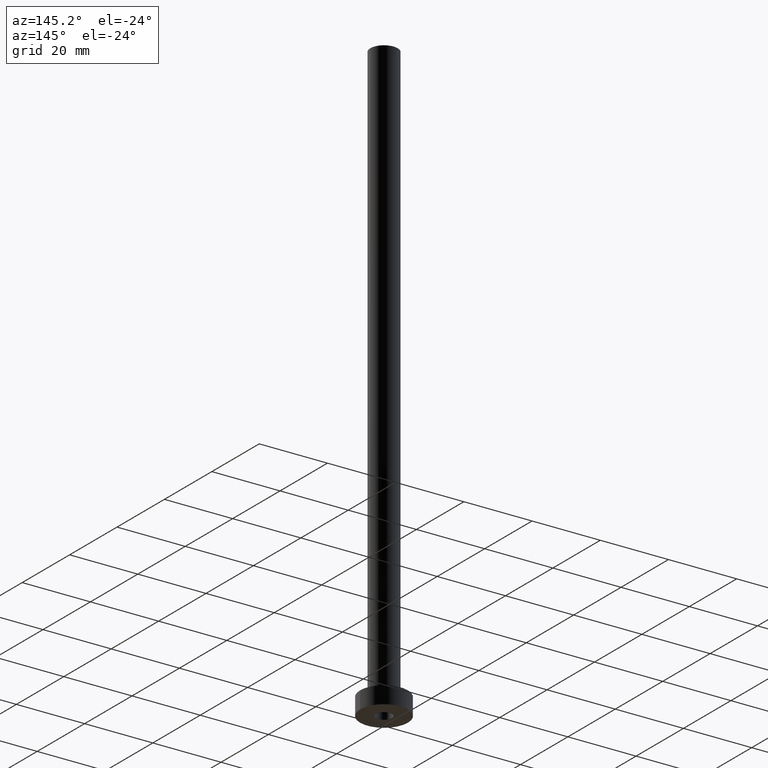
[diagram: clean part render]
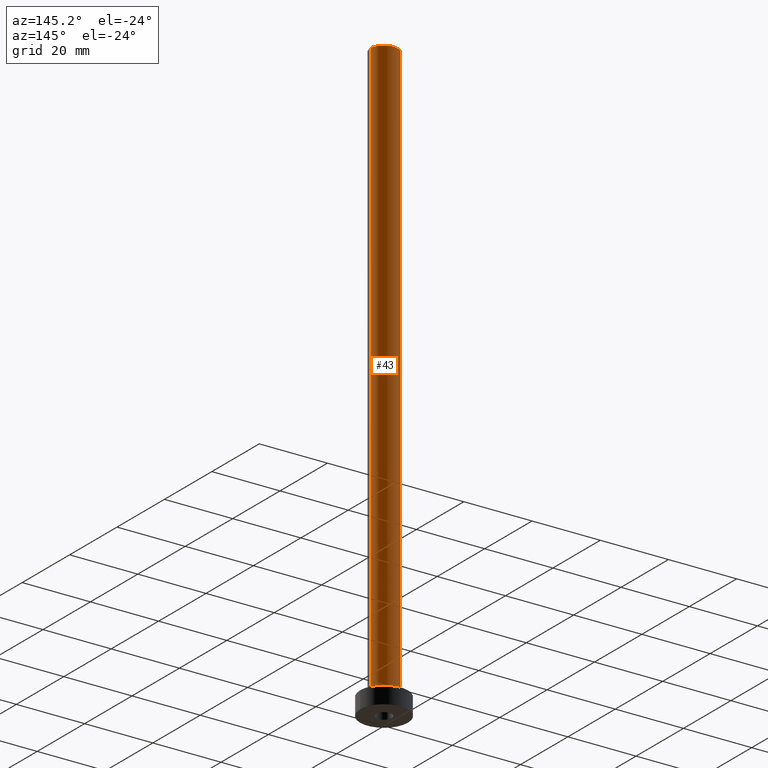
[diagram: same view with one face highlighted and labeled with its STEP entity id]
A machine part, auxiliary view. The second image highlights one B-rep face of the part: STEP entity #43.
In plain terms, the highlighted cylindrical surface (edge-blend (fillet) strip) has radius 4 mm, axis along (-0, -0, -1).
Its self-contained STEP definition (entity closure, byte-faithful):
#4 = CARTESIAN_POINT ( 'NONE',  ( 0.000000000000000000, 0.000000000000000000, 175.0000000000000284 ) ) ;
#16 = ORIENTED_EDGE ( 'NONE', *, *, #284, .F. ) ;
#40 = CYLINDRICAL_SURFACE ( 'NONE', #246, 4.000000000000000000 ) ;
#43 = ADVANCED_FACE ( 'NONE', ( #309 ), #40, .T. ) ;
#45 = ORIENTED_EDGE ( 'NONE', *, *, #294, .T. ) ;
#52 = CARTESIAN_POINT ( 'NONE',  ( 4.000000000000000000, 4.898587196589412829E-16, 175.0000000000000284 ) ) ;
#64 = CARTESIAN_POINT ( 'NONE',  ( -4.000000000000000000, 0.000000000000000000, 175.0000000000000284 ) ) ;
#69 = CARTESIAN_POINT ( 'NONE',  ( 0.000000000000000000, 0.000000000000000000, 5.500000000000005329 ) ) ;
#89 = ORIENTED_EDGE ( 'NONE', *, *, #127, .T. ) ;
#90 = LINE ( 'NONE', #375, #104 ) ;
#97 = EDGE_LOOP ( 'NONE', ( #16, #89, #45, #153 ) ) ;
#98 = DIRECTION ( 'NONE',  ( -0.000000000000000000, -0.000000000000000000, -1.000000000000000000 ) ) ;
#103 = DIRECTION ( 'NONE',  ( 0.000000000000000000, 0.000000000000000000, 1.000000000000000000 ) ) ;
#104 = VECTOR ( 'NONE', #230, 1000.000000000000000 ) ;
#127 = EDGE_CURVE ( 'NONE', #178, #165, #90, .T. ) ;
#144 = DIRECTION ( 'NONE',  ( -0.000000000000000000, -0.000000000000000000, -1.000000000000000000 ) ) ;
#153 = ORIENTED_EDGE ( 'NONE', *, *, #306, .F. ) ;
#165 = VERTEX_POINT ( 'NONE', #384 ) ;
#173 = CIRCLE ( 'NONE', #443, 4.000000000000000000 ) ;
#178 = VERTEX_POINT ( 'NONE', #52 ) ;
#187 = VECTOR ( 'NONE', #98, 1000.000000000000000 ) ;
#205 = CIRCLE ( 'NONE', #420, 4.000000000000000000 ) ;
#222 = VERTEX_POINT ( 'NONE', #276 ) ;
#230 = DIRECTION ( 'NONE',  ( -0.000000000000000000, -0.000000000000000000, -1.000000000000000000 ) ) ;
#237 = LINE ( 'NONE', #64, #187 ) ;
#246 = AXIS2_PLACEMENT_3D ( 'NONE', #4, #144, #426 ) ;
#276 = CARTESIAN_POINT ( 'NONE',  ( -4.000000000000000000, 0.000000000000000000, 5.500000000000005329 ) ) ;
#284 = EDGE_CURVE ( 'NONE', #178, #296, #173, .T. ) ;
#285 = DIRECTION ( 'NONE',  ( 1.000000000000000000, 0.000000000000000000, 0.000000000000000000 ) ) ;
#294 = EDGE_CURVE ( 'NONE', #165, #222, #205, .T. ) ;
#296 = VERTEX_POINT ( 'NONE', #427 ) ;
#306 = EDGE_CURVE ( 'NONE', #296, #222, #237, .T. ) ;
#309 = FACE_OUTER_BOUND ( 'NONE', #97, .T. ) ;
#317 = DIRECTION ( 'NONE',  ( 0.000000000000000000, 0.000000000000000000, 1.000000000000000000 ) ) ;
#375 = CARTESIAN_POINT ( 'NONE',  ( 4.000000000000000000, 4.898587196589412829E-16, 175.0000000000000284 ) ) ;
#384 = CARTESIAN_POINT ( 'NONE',  ( 4.000000000000000000, 4.898587196589412829E-16, 5.500000000000005329 ) ) ;
#401 = DIRECTION ( 'NONE',  ( 1.000000000000000000, 0.000000000000000000, 0.000000000000000000 ) ) ;
#420 = AXIS2_PLACEMENT_3D ( 'NONE', #69, #103, #401 ) ;
#426 = DIRECTION ( 'NONE',  ( -1.000000000000000000, 0.000000000000000000, 0.000000000000000000 ) ) ;
#427 = CARTESIAN_POINT ( 'NONE',  ( -4.000000000000000000, 0.000000000000000000, 175.0000000000000284 ) ) ;
#443 = AXIS2_PLACEMENT_3D ( 'NONE', #461, #317, #285 ) ;
#461 = CARTESIAN_POINT ( 'NONE',  ( 0.000000000000000000, 0.000000000000000000, 175.0000000000000284 ) ) ;